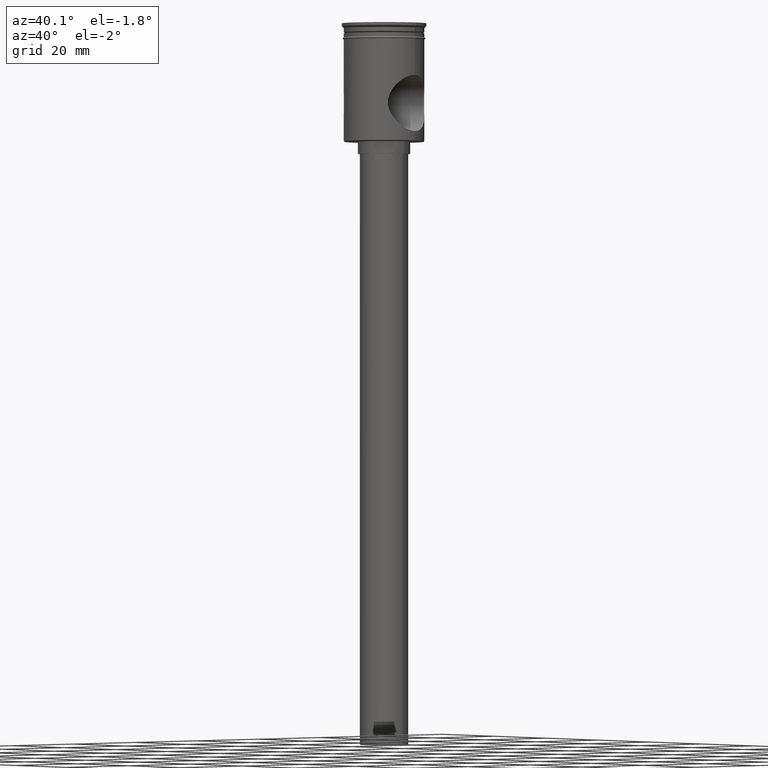
[diagram: clean part render]
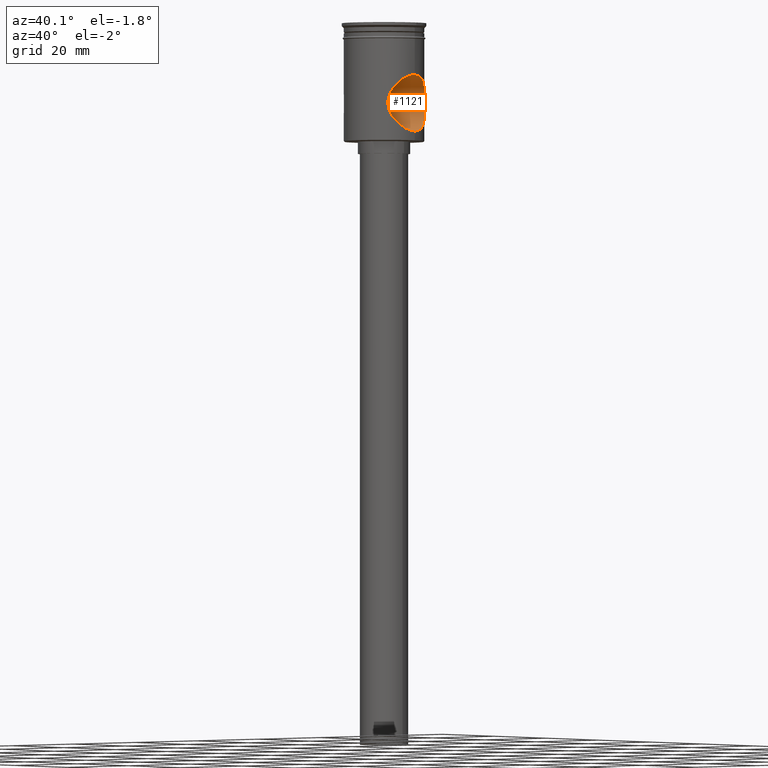
[diagram: same view with one face highlighted and labeled with its STEP entity id]
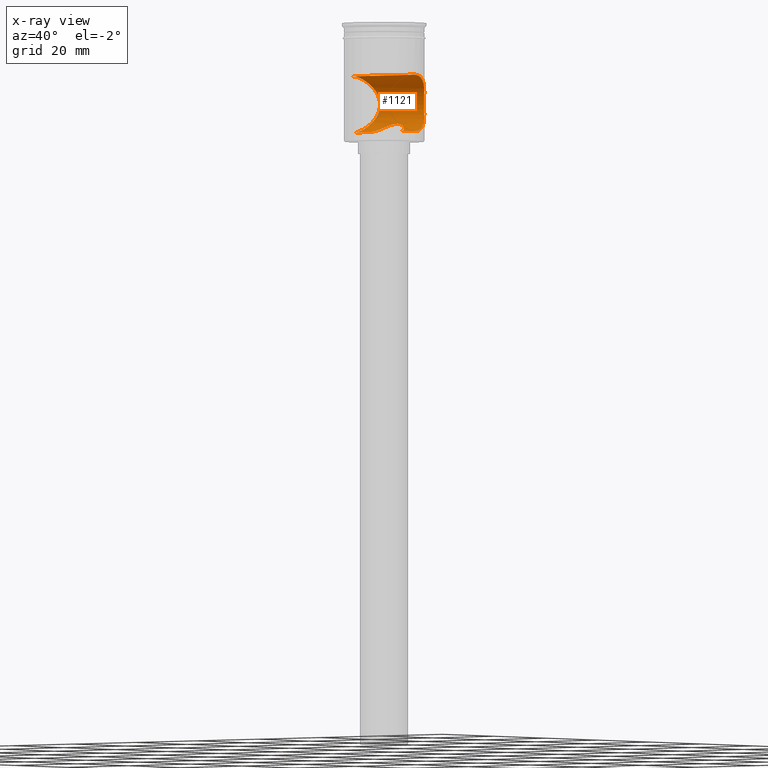
[diagram: x-ray of the same camera — body ghosted, the highlighted face saturated]
A machine part, auxiliary view. The second image highlights one B-rep face of the part: STEP entity #1121.
The next image is the same camera in x-ray: the body ghosted, the highlighted face saturated — about 4% of this face is hidden behind the body in this view.
In plain terms, the highlighted cylindrical surface (edge-blend (fillet) strip) has radius 7 mm, axis along (1, -0, -0).
Its self-contained STEP definition (entity closure, byte-faithful):
#37 = CARTESIAN_POINT ( 'NONE',  ( 7.495754172928653425, 6.623269820279323206, -17.68917710553390421 ) ) ;
#46 = CARTESIAN_POINT ( 'NONE',  ( -3.747349970914688022, 3.325110483998860555, -26.16520927218463299 ) ) ;
#58 = FACE_OUTER_BOUND ( 'NONE', #180, .T. ) ;
#64 = CYLINDRICAL_SURFACE ( 'NONE', #1332, 6.999999999999999112 ) ;
#68 = CARTESIAN_POINT ( 'NONE',  ( -1.809467163200384254, 4.663868933387907312, -25.22066088895259739 ) ) ;
#70 = DIRECTION ( 'NONE',  ( 1.000000000000000000, -0.000000000000000000, -0.000000000000000000 ) ) ;
#83 = CARTESIAN_POINT ( 'NONE',  ( -9.832878540591766026, 1.879722866531852610, -13.24054240779419089 ) ) ;
#90 = CARTESIAN_POINT ( 'NONE',  ( -9.932287513067288742, 1.185065133237715562, -13.09699146176595974 ) ) ;
#99 = VECTOR ( 'NONE', #70, 1000.000000000000000 ) ;
#100 = CARTESIAN_POINT ( 'NONE',  ( -7.569330506494653221, 6.535933251526299337, -17.48356472559870411 ) ) ;
#106 = CARTESIAN_POINT ( 'NONE',  ( -9.867116120145130509, 1.641278058953928198, -26.80890176429204885 ) ) ;
#164 = CARTESIAN_POINT ( 'NONE',  ( 4.532214772625207111, 2.118082564557161707, -26.67373434947571198 ) ) ;
#169 = CARTESIAN_POINT ( 'NONE',  ( 9.735967975428478027, 2.325336189795355502, -13.38128717480536345 ) ) ;
#171 = CARTESIAN_POINT ( 'NONE',  ( -3.953319486935452431, 3.077855022031981136, -26.29363764657269797 ) ) ;
#179 = CARTESIAN_POINT ( 'NONE',  ( -1.342486960747957481, 4.819225539182826701, -25.07736495545731970 ) ) ;
#180 = EDGE_LOOP ( 'NONE', ( #871, #1014, #820, #1042, #1423, #1477 ) ) ;
#187 = CARTESIAN_POINT ( 'NONE',  ( -10.50000000000000000, 0.000000000000000000, -27.00000000000000355 ) ) ;
#190 = CARTESIAN_POINT ( 'NONE',  ( -7.377383315084117932, 6.751497144694277530, -18.13709901651008494 ) ) ;
#198 = CARTESIAN_POINT ( 'NONE',  ( -8.322069302564289117, 5.553051878775062455, -24.28499264081531095 ) ) ;
#204 = CARTESIAN_POINT ( 'NONE',  ( 9.965446655919850016, 0.9519641332654187327, -26.95088558220736630 ) ) ;
#205 = CARTESIAN_POINT ( 'NONE',  ( -9.736384942666980180, 2.323699784143521185, -13.38067151163704871 ) ) ;
#212 = CARTESIAN_POINT ( 'NONE',  ( -8.497179343882921287, 5.284524261307590010, -15.38819392766633243 ) ) ;
#229 = VERTEX_POINT ( 'NONE', #460 ) ;
#265 = CARTESIAN_POINT ( 'NONE',  ( 7.573222039985391341, 6.531435267832768510, -22.52812481744788897 ) ) ;
#272 = CARTESIAN_POINT ( 'NONE',  ( -9.999999999999996447, 0.000000000000000000, -27.00000000000000355 ) ) ;
#274 = CARTESIAN_POINT ( 'NONE',  ( 7.503273641266415162, 6.611317046147628496, -22.31171733569519944 ) ) ;
#277 = CARTESIAN_POINT ( 'NONE',  ( 3.947161404201652513, 3.085829967940950436, -26.28975409226824667 ) ) ;
#284 = CARTESIAN_POINT ( 'NONE',  ( -3.300970264808641197, 3.768631959499709083, -25.90453878422926692 ) ) ;
#289 = CARTESIAN_POINT ( 'NONE',  ( -2.532890282785345448, 4.322635034373780272, -25.51029251272041165 ) ) ;
#293 = DIRECTION ( 'NONE',  ( 1.000000000000000000, -0.000000000000000000, -0.000000000000000000 ) ) ;
#298 = CARTESIAN_POINT ( 'NONE',  ( -3.059068203738755543, 3.967720825599827528, -25.77110809691168214 ) ) ;
#303 = CARTESIAN_POINT ( 'NONE',  ( -7.140877080678154520, 7.000562488098499792, -19.52635574343557323 ) ) ;
#310 = CARTESIAN_POINT ( 'NONE',  ( -9.675488818793542833, 2.536388918100093370, -26.52836702033825489 ) ) ;
#316 = CARTESIAN_POINT ( 'NONE',  ( 9.493823586986472662, 3.171854784083770085, -26.25704949909892250 ) ) ;
#319 = CARTESIAN_POINT ( 'NONE',  ( -7.505468983612143319, 6.608824641700789648, -22.31875249157933183 ) ) ;
#325 = CARTESIAN_POINT ( 'NONE',  ( -7.191763660842745765, 6.949507115151161152, -20.96152780032075569 ) ) ;
#332 = CARTESIAN_POINT ( 'NONE',  ( -9.351609315107900500, 3.564938189428367377, -26.04074502495870647 ) ) ;
#378 = EDGE_CURVE ( 'NONE', #972, #1120, #1009, .T. ) ;
#389 = CARTESIAN_POINT ( 'NONE',  ( 9.957729828106900882, 0.9487746701410815220, -13.06049825370512707 ) ) ;
#393 = CARTESIAN_POINT ( 'NONE',  ( 1.337335298765798930, 4.829642785058293697, -25.06789870844718138 ) ) ;
#401 = CARTESIAN_POINT ( 'NONE',  ( 1.650992066523039759, 4.730545921691764022, -25.16233632639476525 ) ) ;
#406 = CARTESIAN_POINT ( 'NONE',  ( -9.999999999999994671, 1.229780025839397734E-15, -13.00000000000000355 ) ) ;
#407 = CARTESIAN_POINT ( 'NONE',  ( 3.741637662025034228, 3.331633962589205300, -26.16170761167131786 ) ) ;
#411 = CARTESIAN_POINT ( 'NONE',  ( -9.991596185262174856, 0.4736682493084680701, -13.01198930438258117 ) ) ;
#422 = CARTESIAN_POINT ( 'NONE',  ( -10.50000000000000000, 0.000000000000000000, -27.00000000000000355 ) ) ;
#423 = CARTESIAN_POINT ( 'NONE',  ( 5.000000000000000888, 5.559607670071811640E-22, -27.00000000000000355 ) ) ;
#427 = CARTESIAN_POINT ( 'NONE',  ( 7.967226261725709691, 6.044961550507583325, -16.46329765270407108 ) ) ;
#429 = B_SPLINE_CURVE_WITH_KNOTS ( 'NONE', 3,
 ( #423, #1117, #887, #893, #1338, #164, #1450, #537, #1358, #277, #407, #880, #641, #1350, #1101, #401, #393, #1345, #1123, #747, #654, #753, #1002, #1224, #179, #996, #68, #1218, #289, #298, #284, #46, #171, #517, #661, #1111, #989, #1460, #1010, #1233 ),
 .UNSPECIFIED., .F., .F.,
 ( 4, 2, 2, 2, 2, 2, 2, 2, 2, 2, 2, 2, 2, 2, 2, 2, 2, 2, 2, 4 ),
 ( 0.01628445435404882874, 0.01730075665134462454, 0.01831705894864042033, 0.01882521009728831476, 0.01933336124593621266, 0.02034966354323200499, 0.02136596584052779732, 0.02238226813782358965, 0.02339857043511938198, 0.02441487273241517431, 0.02492302388106306874, 0.02543117502971096316, 0.02593932617835886106, 0.02644747732700675896, 0.02746377962430255476, 0.02848008192159835056, 0.02949638421889414636, 0.03051268651618994215, 0.03152898881348573795, 0.03254529111078153375 ),
 .UNSPECIFIED. ) ;
#430 = CARTESIAN_POINT ( 'NONE',  ( -7.802583678074495488, 6.256037095215747357, -23.14831442975813403 ) ) ;
#432 = B_SPLINE_CURVE_WITH_KNOTS ( 'NONE', 3,
 ( #1222, #1376, #204, #968, #549, #316, #1020, #1458, #523, #622, #1326, #751, #1137, #265, #274, #668, #1495, #506, #629, #1092, #737, #499, #1342, #872, #1099, #790, #37, #1260, #994, #427, #436, #1208, #1215, #904, #976, #866, #1448, #779, #675, #169, #637, #898, #389, #1441, #1109, #744 ),
 .UNSPECIFIED., .F., .F.,
 ( 4, 2, 2, 2, 2, 2, 2, 2, 2, 2, 2, 2, 2, 2, 2, 2, 2, 2, 2, 2, 2, 2, 4 ),
 ( 0.000000000000000000, 0.001421073207666945183, 0.002842146415333890366, 0.004263219623000837066, 0.005684292830667782466, 0.007105366038334726998, 0.008526439246001672398, 0.009236975849835149868, 0.009947512453668627339, 0.01065804905750210654, 0.01136858566133558401, 0.01207912226516906322, 0.01278965886900253895, 0.01421073207666949390, 0.01492126868050296790, 0.01563180528433644190, 0.01705287849200338296, 0.01847395169967032749, 0.01918448830350380149, 0.01989502490733727202, 0.02131609811500421309, 0.02202663471883768362, 0.02273717132267115415 ),
 .UNSPECIFIED. ) ;
#436 = CARTESIAN_POINT ( 'NONE',  ( 8.053311715077979827, 5.930176009131115755, -16.27420902905398137 ) ) ;
#453 = CARTESIAN_POINT ( 'NONE',  ( -9.035512705743391493, 4.303590503429356673, -25.53881697926559013 ) ) ;
#456 = CARTESIAN_POINT ( 'NONE',  ( 5.000000000000000888, 5.559607670071811640E-22, -27.00000000000000355 ) ) ;
#460 = CARTESIAN_POINT ( 'NONE',  ( -9.999999999999994671, 1.229780025839397734E-15, -13.00000000000000355 ) ) ;
#471 = LINE ( 'NONE', #1534, #736 ) ;
#474 = EDGE_CURVE ( 'NONE', #229, #972, #925, .T. ) ;
#498 = VERTEX_POINT ( 'NONE', #1255 ) ;
#499 = CARTESIAN_POINT ( 'NONE',  ( 7.141373392009660925, 7.000056148497767694, -19.76373034873126144 ) ) ;
#506 = CARTESIAN_POINT ( 'NONE',  ( 7.236111701560244747, 6.902383710959966834, -21.18811620976742915 ) ) ;
#517 = CARTESIAN_POINT ( 'NONE',  ( -4.312672081940169377, 2.550056080968593708, -26.52535672181373272 ) ) ;
#523 = CARTESIAN_POINT ( 'NONE',  ( 8.856372138511654057, 4.657577678256724418, -25.24421500772974269 ) ) ;
#530 = CARTESIAN_POINT ( 'NONE',  ( -9.999999999999992895, 0.2368473339933030442, -13.00000000000000355 ) ) ;
#537 = CARTESIAN_POINT ( 'NONE',  ( 4.302583893006863391, 2.552311853721903834, -26.51987771003208039 ) ) ;
#543 = CARTESIAN_POINT ( 'NONE',  ( -7.322655419112948927, 6.810500286563438976, -18.36528137380275538 ) ) ;
#549 = CARTESIAN_POINT ( 'NONE',  ( 9.735585976469911529, 2.326309258653758594, -26.61812786508321693 ) ) ;
#550 = CARTESIAN_POINT ( 'NONE',  ( -9.999999999999998224, 0.4807969081117817733, -27.00000000000001066 ) ) ;
#556 = CARTESIAN_POINT ( 'NONE',  ( -9.826638545464753349, 1.868062541291059642, -26.75021854738501759 ) ) ;
#567 = CARTESIAN_POINT ( 'NONE',  ( -7.500597748671954612, 6.614342876288898054, -17.69704926583546722 ) ) ;
#622 = CARTESIAN_POINT ( 'NONE',  ( 8.500359578522527215, 5.279417043634754947, -24.61763755135371312 ) ) ;
#629 = CARTESIAN_POINT ( 'NONE',  ( 7.201179731105407100, 6.938600208746065867, -20.95536877560809330 ) ) ;
#637 = CARTESIAN_POINT ( 'NONE',  ( 9.832512437962645180, 1.881659858244550509, -13.24107387809922898 ) ) ;
#641 = CARTESIAN_POINT ( 'NONE',  ( 3.050937175451544192, 3.973799787454030064, -25.76685066996338591 ) ) ;
#650 = LINE ( 'NONE', #187, #99 ) ;
#654 = CARTESIAN_POINT ( 'NONE',  ( -0.3480649584412727759, 4.990754227678547927, -24.90846136708503167 ) ) ;
#660 = CARTESIAN_POINT ( 'NONE',  ( -7.963207023572478782, 6.050255927956311730, -16.47232531239752262 ) ) ;
#661 = CARTESIAN_POINT ( 'NONE',  ( -4.467666997400166373, 2.268743445522607871, -26.62957127697793780 ) ) ;
#668 = CARTESIAN_POINT ( 'NONE',  ( 7.379165411094851912, 6.749558967525724817, -21.87002777218119931 ) ) ;
#669 = CARTESIAN_POINT ( 'NONE',  ( -9.028965068475375944, 4.317457269925931485, -14.47181101200376574 ) ) ;
#675 = CARTESIAN_POINT ( 'NONE',  ( 9.553141715981873006, 2.964211287661889571, -13.65436461758242181 ) ) ;
#676 = CARTESIAN_POINT ( 'NONE',  ( -7.723089038241832682, 6.353518016691833914, -22.94679462982522722 ) ) ;
#692 = CARTESIAN_POINT ( 'NONE',  ( -7.796802139286405087, 6.263237125868982069, -16.86600156342442602 ) ) ;
#715 = EDGE_CURVE ( 'NONE', #498, #846, #432, .T. ) ;
#736 = VECTOR ( 'NONE', #1164, 1000.000000000000000 ) ;
#737 = CARTESIAN_POINT ( 'NONE',  ( 7.141483849871202771, 6.999943458932625262, -20.23958506209359243 ) ) ;
#739 = DIRECTION ( 'NONE',  ( 1.000000000000000000, -0.000000000000000000, -0.000000000000000000 ) ) ;
#744 = CARTESIAN_POINT ( 'NONE',  ( 9.999999999999994671, -5.133226810943367768E-18, -13.00000000000000355 ) ) ;
#747 = CARTESIAN_POINT ( 'NONE',  ( -0.1754869620673724095, 4.999867480858278590, -24.89911473726898095 ) ) ;
#749 = DIRECTION ( 'NONE',  ( 0.000000000000000000, 0.000000000000000000, -1.000000000000000000 ) ) ;
#751 = CARTESIAN_POINT ( 'NONE',  ( 7.964400624432384390, 6.054727537725132613, -23.54044438658495508 ) ) ;
#753 = CARTESIAN_POINT ( 'NONE',  ( -0.6855234035077085730, 4.955687100658117572, -24.94386348048046287 ) ) ;
#774 = CARTESIAN_POINT ( 'NONE',  ( -8.056358060451357161, 5.926078000082595665, -23.73242365119358155 ) ) ;
#779 = CARTESIAN_POINT ( 'NONE',  ( 9.485754788391535186, 3.172574074835096791, -13.75608760595409663 ) ) ;
#782 = CARTESIAN_POINT ( 'NONE',  ( -7.969012120586809189, 6.042611853496009822, -23.54072391938827735 ) ) ;
#790 = CARTESIAN_POINT ( 'NONE',  ( 7.368839572955796058, 6.761454996973014886, -18.12764364703029329 ) ) ;
#791 = CARTESIAN_POINT ( 'NONE',  ( -7.381411116935110428, 6.747102913955162151, -21.87877048370861743 ) ) ;
#820 = ORIENTED_EDGE ( 'NONE', *, *, #378, .T. ) ;
#838 = VECTOR ( 'NONE', #739, 1000.000000000000000 ) ;
#846 = VERTEX_POINT ( 'NONE', #1172 ) ;
#866 = CARTESIAN_POINT ( 'NONE',  ( 9.267396788860448709, 3.762388530127553476, -14.09286872329777474 ) ) ;
#871 = ORIENTED_EDGE ( 'NONE', *, *, #1209, .F. ) ;
#872 = CARTESIAN_POINT ( 'NONE',  ( 7.199668910925416832, 6.940164191266630311, -19.05657392165621289 ) ) ;
#880 = CARTESIAN_POINT ( 'NONE',  ( 3.292944377375058629, 3.775732323944060109, -25.90002296354260736 ) ) ;
#887 = CARTESIAN_POINT ( 'NONE',  ( 4.965285058292300491, 0.6793982586713438465, -26.97507591100514190 ) ) ;
#893 = CARTESIAN_POINT ( 'NONE',  ( 4.827574874569009467, 1.345421322269139131, -26.87772545422928872 ) ) ;
#898 = CARTESIAN_POINT ( 'NONE',  ( 9.932071413309429886, 1.186883990593142979, -13.09730212679606964 ) ) ;
#899 = CARTESIAN_POINT ( 'NONE',  ( -7.717429328536875133, 6.360383034377457001, -17.06803860621227287 ) ) ;
#902 = CARTESIAN_POINT ( 'NONE',  ( -5.000000000000000888, 0.000000000000000000, -27.00000000000001066 ) ) ;
#904 = CARTESIAN_POINT ( 'NONE',  ( 8.857763224790600631, 4.655166966848104160, -14.75332674821394185 ) ) ;
#914 = CARTESIAN_POINT ( 'NONE',  ( -9.730782946235683184, 2.316105786581691639, -26.60989879506474054 ) ) ;
#919 = CARTESIAN_POINT ( 'NONE',  ( -7.141989287018506438, 6.999427809131203659, -20.49012689816927946 ) ) ;
#925 = B_SPLINE_CURVE_WITH_KNOTS ( 'NONE', 3,
 ( #406, #530, #411, #1393, #90, #83, #205, #1015, #1506, #669, #1038, #212, #1022, #1028, #660, #692, #899, #100, #567, #190, #543, #1489, #303, #919, #325, #1131, #791, #319, #1496, #676, #430, #782, #774, #198, #1514, #1245, #453, #332, #1261, #310, #914, #556, #106, #1520, #550, #1145 ),
 .UNSPECIFIED., .F., .F.,
 ( 4, 2, 2, 2, 2, 2, 2, 2, 2, 2, 2, 2, 2, 2, 2, 2, 2, 2, 2, 2, 2, 2, 4 ),
 ( 0.02273717132267112292, 0.02344677004960169994, 0.02415636877653227696, 0.02557556623039343099, 0.02699476368425458156, 0.02841396113811573559, 0.02983315859197688963, 0.03054275731890747012, 0.03125235604583804366, 0.03196195477276862762, 0.03267155349969920464, 0.03409075095356035867, 0.03550994840742151271, 0.03621954713435208278, 0.03692914586128265980, 0.03763874458821323682, 0.03834834331514381384, 0.03976754076900496787, 0.04118673822286612884, 0.04260593567672728288, 0.04331553440365785990, 0.04402513313058842997, 0.04544433058444957707 ),
 .UNSPECIFIED. ) ;
#968 = CARTESIAN_POINT ( 'NONE',  ( 9.834047061028444503, 1.872933838790287631, -26.76115115372198616 ) ) ;
#972 = VERTEX_POINT ( 'NONE', #272 ) ;
#976 = CARTESIAN_POINT ( 'NONE',  ( 9.029975738911995009, 4.315133941133939999, -14.47019995321800323 ) ) ;
#989 = CARTESIAN_POINT ( 'NONE',  ( -4.828419546609890034, 1.341499001965817062, -26.87832208419421320 ) ) ;
#994 = CARTESIAN_POINT ( 'NONE',  ( 7.801002067758135539, 6.258004569467825462, -16.85560777748649386 ) ) ;
#996 = CARTESIAN_POINT ( 'NONE',  ( -1.657180693842158492, 4.720270986420919357, -25.16948851465703640 ) ) ;
#1002 = CARTESIAN_POINT ( 'NONE',  ( -0.8517833671990766575, 4.929758116149198344, -24.96988441214763910 ) ) ;
#1009 = LINE ( 'NONE', #422, #838 ) ;
#1010 = CARTESIAN_POINT ( 'NONE',  ( -5.000000000000000888, 0.3443248772558981097, -27.00000000000001066 ) ) ;
#1014 = ORIENTED_EDGE ( 'NONE', *, *, #474, .T. ) ;
#1015 = CARTESIAN_POINT ( 'NONE',  ( -9.492393824703034610, 3.176669941205828795, -13.74509325342724253 ) ) ;
#1020 = CARTESIAN_POINT ( 'NONE',  ( 9.349377247001186220, 3.571280898155820172, -26.03738208151085587 ) ) ;
#1022 = CARTESIAN_POINT ( 'NONE',  ( -8.315544161946238688, 5.562748588078728851, -15.72768175892419862 ) ) ;
#1028 = CARTESIAN_POINT ( 'NONE',  ( -8.050554706296177088, 5.933943087171876130, -16.28011583648020988 ) ) ;
#1038 = CARTESIAN_POINT ( 'NONE',  ( -8.853430568094132980, 4.663155653245508070, -14.76073180007297125 ) ) ;
#1042 = ORIENTED_EDGE ( 'NONE', *, *, #1416, .F. ) ;
#1092 = CARTESIAN_POINT ( 'NONE',  ( 7.153700441637879770, 6.987541224765998926, -20.48080140017840733 ) ) ;
#1099 = CARTESIAN_POINT ( 'NONE',  ( 7.234464554488559962, 6.904114004842417884, -18.82145945963317857 ) ) ;
#1101 = CARTESIAN_POINT ( 'NONE',  ( 2.244562664444794908, 4.479484118326247710, -25.38163572696187487 ) ) ;
#1109 = CARTESIAN_POINT ( 'NONE',  ( 9.999999999999996447, 0.2371603752032602208, -13.00000000000000711 ) ) ;
#1111 = CARTESIAN_POINT ( 'NONE',  ( -4.725420519943790865, 1.666627172151766034, -26.80593608603389555 ) ) ;
#1117 = CARTESIAN_POINT ( 'NONE',  ( 5.000000000000001776, 0.3397238778479513277, -27.00000000000001776 ) ) ;
#1119 = CARTESIAN_POINT ( 'NONE',  ( -10.50000000000000000, 0.000000000000000000, -20.00000000000000355 ) ) ;
#1120 = VERTEX_POINT ( 'NONE', #902 ) ;
#1121 = ADVANCED_FACE ( 'NONE', ( #58 ), #64, .F. ) ;
#1123 = CARTESIAN_POINT ( 'NONE',  ( 0.3395221110590841973, 5.000260666815379729, -24.89871344377069917 ) ) ;
#1131 = CARTESIAN_POINT ( 'NONE',  ( -7.326263957022342233, 6.806624336356017935, -21.65073055260620905 ) ) ;
#1137 = CARTESIAN_POINT ( 'NONE',  ( 7.796463043157196182, 6.266459839169562507, -23.15209899686185224 ) ) ;
#1145 = CARTESIAN_POINT ( 'NONE',  ( -9.999999999999996447, 0.000000000000000000, -27.00000000000000355 ) ) ;
#1160 = EDGE_CURVE ( 'NONE', #1259, #498, #650, .T. ) ;
#1164 = DIRECTION ( 'NONE',  ( 1.000000000000000000, -0.000000000000000000, -0.000000000000000000 ) ) ;
#1172 = CARTESIAN_POINT ( 'NONE',  ( 9.999999999999994671, -5.133226810943367768E-18, -13.00000000000000355 ) ) ;
#1208 = CARTESIAN_POINT ( 'NONE',  ( 8.316470757484857756, 5.561257273121390732, -15.72607428983809008 ) ) ;
#1209 = EDGE_CURVE ( 'NONE', #229, #846, #471, .T. ) ;
#1215 = CARTESIAN_POINT ( 'NONE',  ( 8.498707828545162712, 5.282283036785497821, -15.38527946463393370 ) ) ;
#1218 = CARTESIAN_POINT ( 'NONE',  ( -2.253263931824065480, 4.475062125113561606, -25.38532386745817249 ) ) ;
#1222 = CARTESIAN_POINT ( 'NONE',  ( 9.999999999999994671, 0.000000000000000000, -27.00000000000001066 ) ) ;
#1224 = CARTESIAN_POINT ( 'NONE',  ( -1.179760909527910684, 4.861708977790192066, -25.03647217495750610 ) ) ;
#1233 = CARTESIAN_POINT ( 'NONE',  ( -5.000000000000000888, 0.000000000000000000, -27.00000000000001066 ) ) ;
#1245 = CARTESIAN_POINT ( 'NONE',  ( -8.860185483737918588, 4.650373212660217526, -25.25064384002004658 ) ) ;
#1255 = CARTESIAN_POINT ( 'NONE',  ( 9.999999999999994671, 0.000000000000000000, -27.00000000000001066 ) ) ;
#1259 = VERTEX_POINT ( 'NONE', #456 ) ;
#1260 = CARTESIAN_POINT ( 'NONE',  ( 7.720495804876724044, 6.356685689900112735, -17.05985571267803991 ) ) ;
#1261 = CARTESIAN_POINT ( 'NONE',  ( -9.494221684495640190, 3.170672659151728912, -26.25765240908376441 ) ) ;
#1326 = CARTESIAN_POINT ( 'NONE',  ( 8.315624236750037923, 5.562535070965512141, -24.27231501587448292 ) ) ;
#1332 = AXIS2_PLACEMENT_3D ( 'NONE', #1119, #293, #749 ) ;
#1338 = CARTESIAN_POINT ( 'NONE',  ( 4.726950443745964847, 1.662804102803707051, -26.80698892215279017 ) ) ;
#1342 = CARTESIAN_POINT ( 'NONE',  ( 7.153235015771536531, 6.988014041043824953, -19.52714534028610061 ) ) ;
#1345 = CARTESIAN_POINT ( 'NONE',  ( 0.6761335185190037178, 4.965557229327413502, -24.93480376029487644 ) ) ;
#1350 = CARTESIAN_POINT ( 'NONE',  ( 2.527883546810657744, 4.325402544629332269, -25.50804359344956751 ) ) ;
#1358 = CARTESIAN_POINT ( 'NONE',  ( 4.218075708378919764, 2.689506414539494017, -26.46431694219991826 ) ) ;
#1376 = CARTESIAN_POINT ( 'NONE',  ( 9.999999999999994671, 0.4814323775651360160, -27.00000000000000711 ) ) ;
#1393 = CARTESIAN_POINT ( 'NONE',  ( -9.957864273581446213, 0.9472565907286251141, -13.06030547907275796 ) ) ;
#1416 = EDGE_CURVE ( 'NONE', #1259, #1120, #429, .T. ) ;
#1423 = ORIENTED_EDGE ( 'NONE', *, *, #1160, .T. ) ;
#1441 = CARTESIAN_POINT ( 'NONE',  ( 9.991574020215791663, 0.4743472386555617204, -13.01202085301403777 ) ) ;
#1448 = CARTESIAN_POINT ( 'NONE',  ( 9.343068346694408888, 3.570972421456893642, -13.97506645596566877 ) ) ;
#1450 = CARTESIAN_POINT ( 'NONE',  ( 4.459557234461517083, 2.266908297124829552, -26.62451718428212288 ) ) ;
#1458 = CARTESIAN_POINT ( 'NONE',  ( 9.029024665842507957, 4.317593744654971033, -25.52832831042054806 ) ) ;
#1460 = CARTESIAN_POINT ( 'NONE',  ( -4.964638892699618111, 0.6823602827348956845, -26.97461961046873924 ) ) ;
#1477 = ORIENTED_EDGE ( 'NONE', *, *, #715, .T. ) ;
#1489 = CARTESIAN_POINT ( 'NONE',  ( -7.189382404875349408, 6.951946978929631094, -19.05590796920064633 ) ) ;
#1495 = CARTESIAN_POINT ( 'NONE',  ( 7.325106434378655607, 6.807865243658028476, -21.64544578927129237 ) ) ;
#1496 = CARTESIAN_POINT ( 'NONE',  ( -7.574535355013248150, 6.529908853628296761, -22.53201108648862316 ) ) ;
#1506 = CARTESIAN_POINT ( 'NONE',  ( -9.347318963212909892, 3.576349491498996613, -13.96584429441086250 ) ) ;
#1514 = CARTESIAN_POINT ( 'NONE',  ( -8.503943671969903306, 5.273689396165736731, -24.62422230267287304 ) ) ;
#1520 = CARTESIAN_POINT ( 'NONE',  ( -9.965325511264431668, 0.9525671816038204787, -26.95070955909274346 ) ) ;
#1534 = CARTESIAN_POINT ( 'NONE',  ( -10.50000000000000000, 8.572527594031471218E-16, -13.00000000000000533 ) ) ;